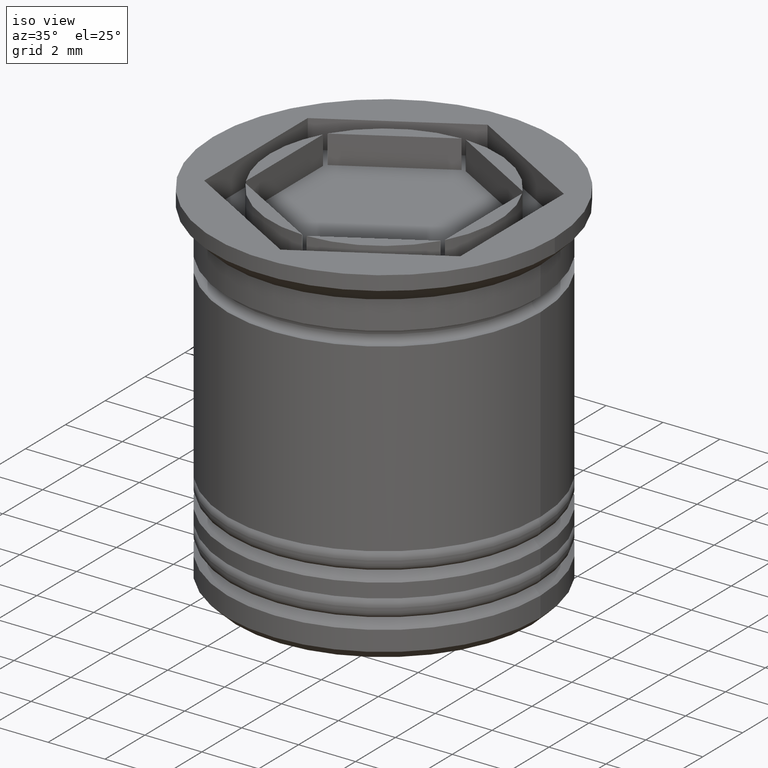
[diagram: clean part render]
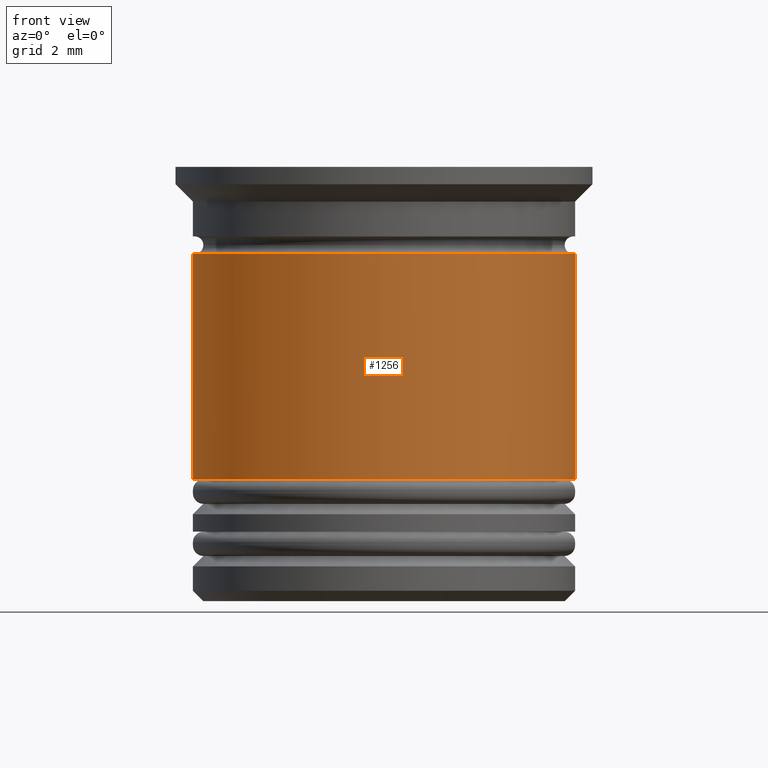
[diagram: tour spotlight — one face highlighted and labeled with its STEP entity id]
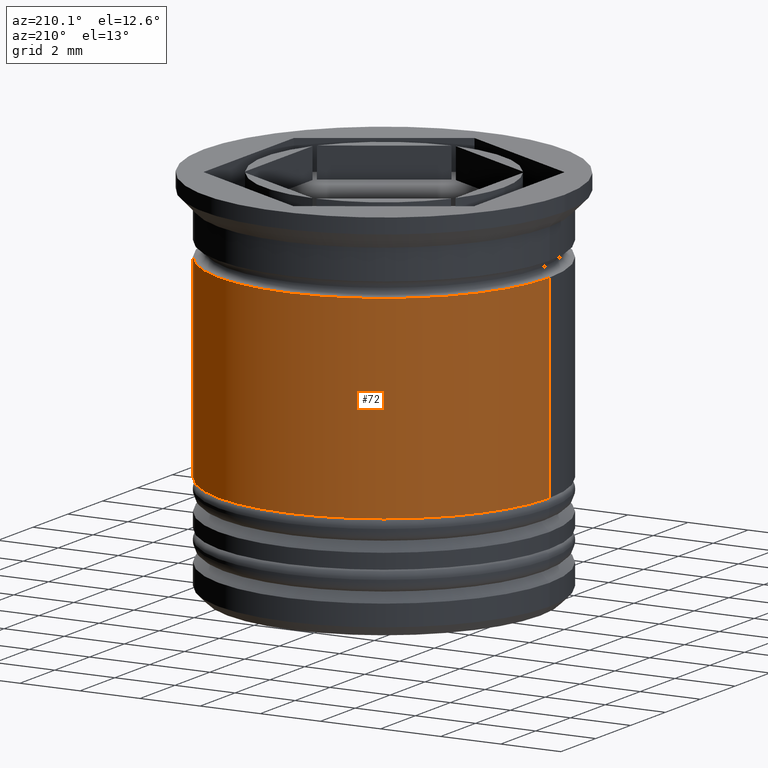
[diagram: tour spotlight — one face highlighted and labeled with its STEP entity id]
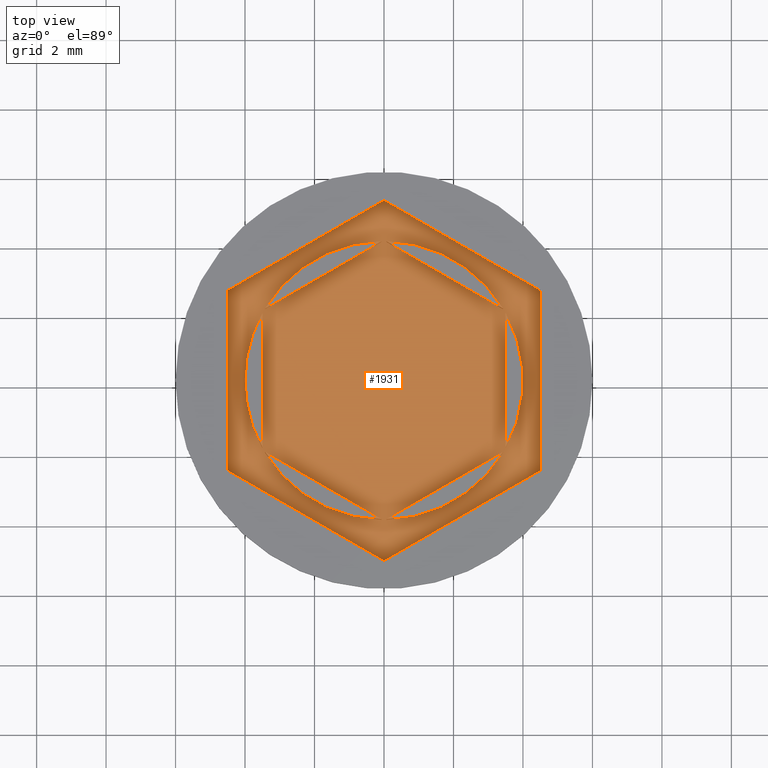
[diagram: tour spotlight — one face highlighted and labeled with its STEP entity id]
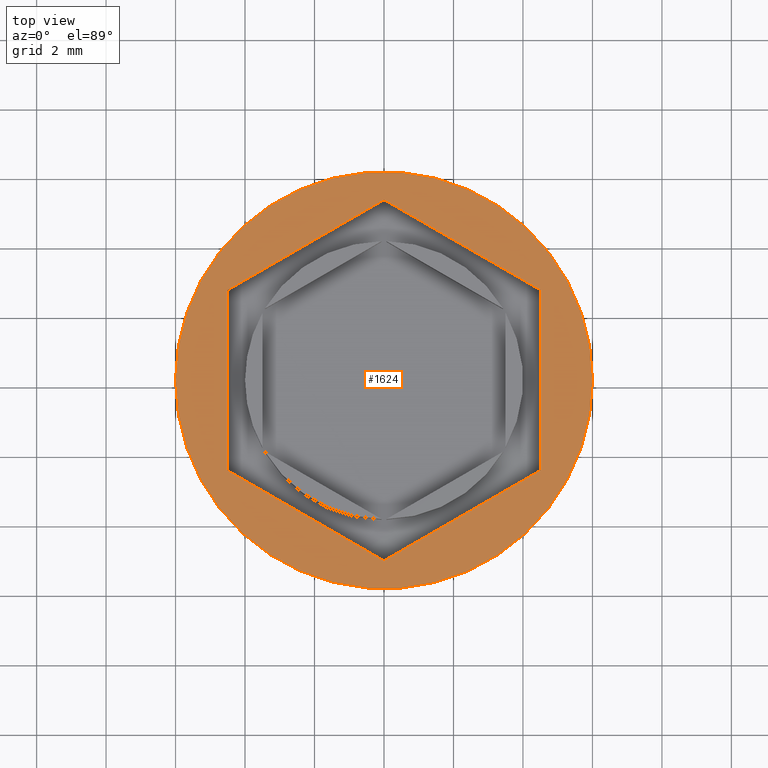
[diagram: tour spotlight — one face highlighted and labeled with its STEP entity id]
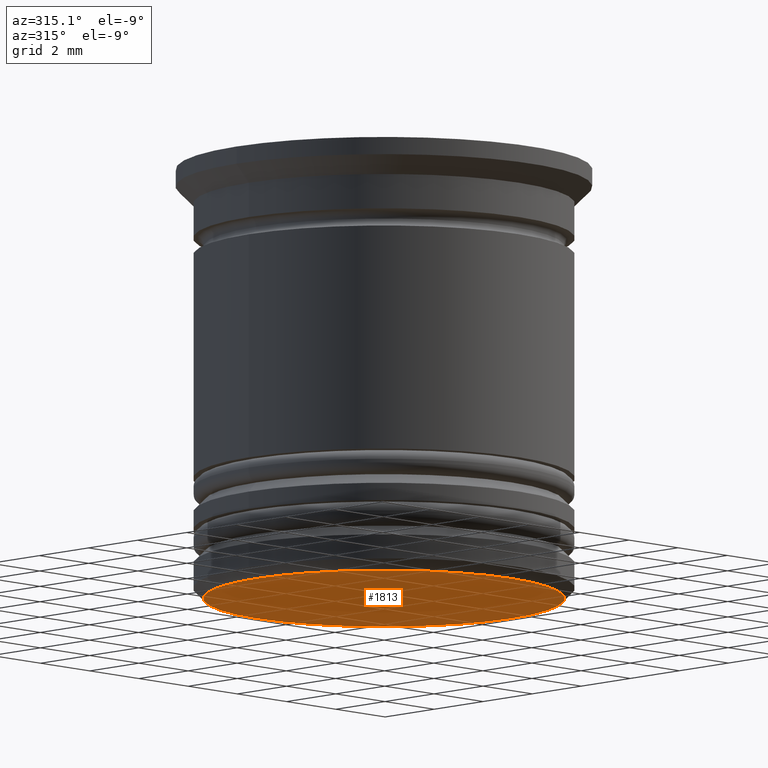
[diagram: tour spotlight — one face highlighted and labeled with its STEP entity id]
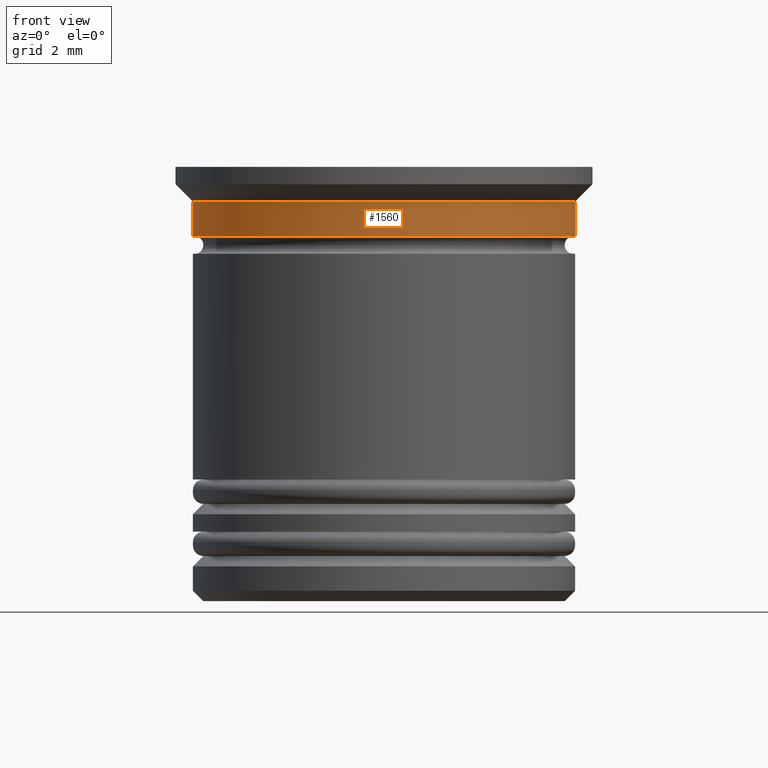
[diagram: tour spotlight — one face highlighted and labeled with its STEP entity id]
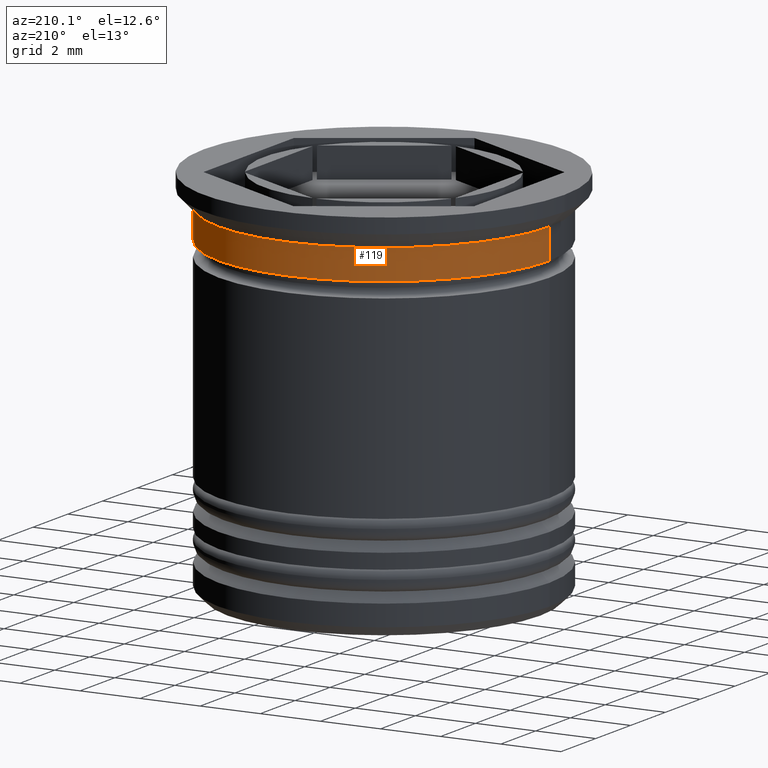
[diagram: tour spotlight — one face highlighted and labeled with its STEP entity id]
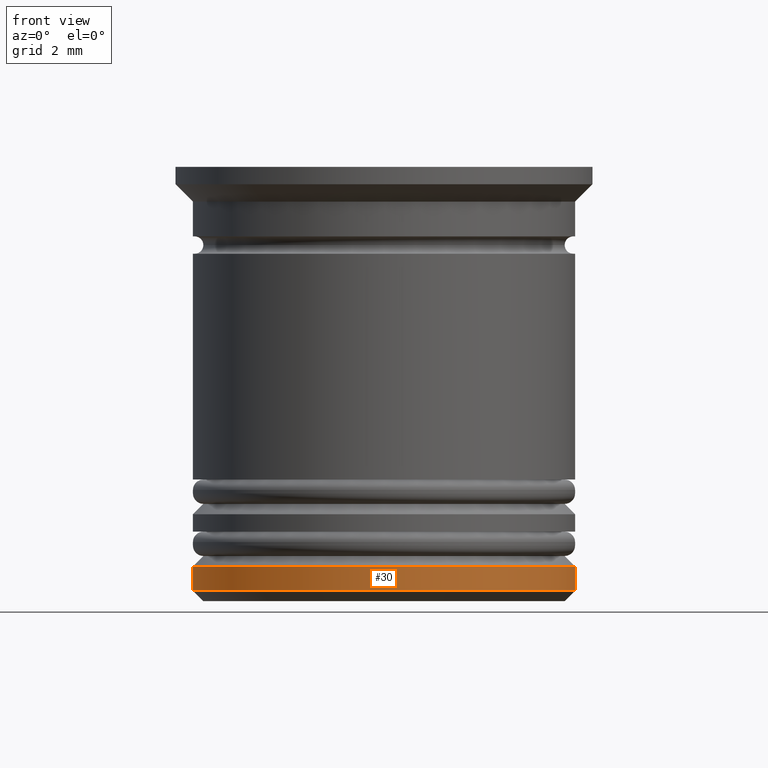
[diagram: tour spotlight — one face highlighted and labeled with its STEP entity id]
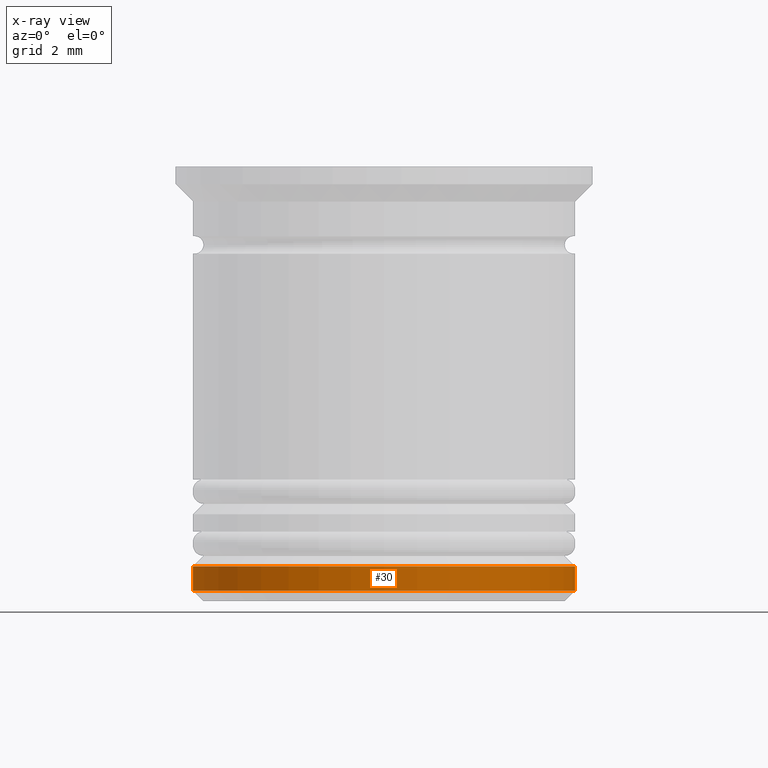
[diagram: x-ray of the same camera — body ghosted, this tour face saturated]
A machine part: a face-by-face anatomy tour. The part has 74 B-rep faces; the first image is the clean iso view, then the 8 largest visible faces are spotlighted one at a time (largest first), each with its STEP entity span.

Face 1 — front view, entity #1256. In plain terms, the highlighted cylindrical surface (partial cylindrical patch) has radius 5.5 mm, axis along (-0, -0, 1).
Definition (entity closure, byte-faithful):
#6 = ORIENTED_EDGE ( 'NONE', *, *, #1342, .T. ) ;
#20 = CARTESIAN_POINT ( 'NONE',  ( 5.499999999999999112, 0.000000000000000000, -2.500000000000000000 ) ) ;
#69 = CARTESIAN_POINT ( 'NONE',  ( -5.499999999999999112, 6.735557395310441037E-16, -2.500000000000000000 ) ) ;
#137 = LINE ( 'NONE', #1661, #1590 ) ;
#171 = CARTESIAN_POINT ( 'NONE',  ( 0.000000000000000000, 0.000000000000000000, 0.000000000000000000 ) ) ;
#198 = AXIS2_PLACEMENT_3D ( 'NONE', #1704, #1271, #1877 ) ;
#248 = DIRECTION ( 'NONE',  ( -0.000000000000000000, -0.000000000000000000, 1.000000000000000000 ) ) ;
#251 = VERTEX_POINT ( 'NONE', #20 ) ;
#255 = DIRECTION ( 'NONE',  ( 1.000000000000000000, 0.000000000000000000, 0.000000000000000000 ) ) ;
#344 = ORIENTED_EDGE ( 'NONE', *, *, #536, .F. ) ;
#404 = CARTESIAN_POINT ( 'NONE',  ( 0.000000000000000000, 0.000000000000000000, -2.500000000000000000 ) ) ;
#492 = AXIS2_PLACEMENT_3D ( 'NONE', #404, #248, #255 ) ;
#500 = LINE ( 'NONE', #1296, #595 ) ;
#536 = EDGE_CURVE ( 'NONE', #1142, #1334, #137, .T. ) ;
#595 = VECTOR ( 'NONE', #1904, 1000.000000000000000 ) ;
#699 = VERTEX_POINT ( 'NONE', #1688 ) ;
#730 = CIRCLE ( 'NONE', #492, 5.499999999999999112 ) ;
#793 = DIRECTION ( 'NONE',  ( -0.000000000000000000, -0.000000000000000000, 1.000000000000000000 ) ) ;
#848 = AXIS2_PLACEMENT_3D ( 'NONE', #171, #793, #1404 ) ;
#903 = CARTESIAN_POINT ( 'NONE',  ( -5.500000000000000888, 6.735557395310443995E-16, -9.000000000000001776 ) ) ;
#1082 = FACE_OUTER_BOUND ( 'NONE', #1716, .T. ) ;
#1104 = CIRCLE ( 'NONE', #198, 5.500000000000001776 ) ;
#1132 = ORIENTED_EDGE ( 'NONE', *, *, #1802, .T. ) ;
#1142 = VERTEX_POINT ( 'NONE', #903 ) ;
#1256 = ADVANCED_FACE ( 'NONE', ( #1082 ), #1707, .T. ) ;
#1271 = DIRECTION ( 'NONE',  ( -0.000000000000000000, -0.000000000000000000, 1.000000000000000000 ) ) ;
#1296 = CARTESIAN_POINT ( 'NONE',  ( 5.500000000000000000, 0.000000000000000000, 0.000000000000000000 ) ) ;
#1334 = VERTEX_POINT ( 'NONE', #69 ) ;
#1342 = EDGE_CURVE ( 'NONE', #699, #251, #500, .T. ) ;
#1404 = DIRECTION ( 'NONE',  ( 1.000000000000000000, 0.000000000000000000, 0.000000000000000000 ) ) ;
#1478 = EDGE_CURVE ( 'NONE', #1334, #251, #730, .T. ) ;
#1590 = VECTOR ( 'NONE', #1829, 1000.000000000000000 ) ;
#1661 = CARTESIAN_POINT ( 'NONE',  ( -5.500000000000000000, 6.735557395310442023E-16, 0.000000000000000000 ) ) ;
#1688 = CARTESIAN_POINT ( 'NONE',  ( 5.500000000000001776, 0.000000000000000000, -9.000000000000001776 ) ) ;
#1704 = CARTESIAN_POINT ( 'NONE',  ( 0.000000000000000000, 0.000000000000000000, -9.000000000000001776 ) ) ;
#1707 = CYLINDRICAL_SURFACE ( 'NONE', #848, 5.500000000000000000 ) ;
#1716 = EDGE_LOOP ( 'NONE', ( #344, #1132, #6, #1939 ) ) ;
#1802 = EDGE_CURVE ( 'NONE', #1142, #699, #1104, .T. ) ;
#1829 = DIRECTION ( 'NONE',  ( -0.000000000000000000, -0.000000000000000000, 1.000000000000000000 ) ) ;
#1877 = DIRECTION ( 'NONE',  ( 1.000000000000000000, 0.000000000000000000, 0.000000000000000000 ) ) ;
#1904 = DIRECTION ( 'NONE',  ( -0.000000000000000000, -0.000000000000000000, 1.000000000000000000 ) ) ;
#1939 = ORIENTED_EDGE ( 'NONE', *, *, #1478, .F. ) ;

Face 2 — auxiliary view, entity #72. In plain terms, the highlighted cylindrical surface (partial cylindrical patch) has radius 5.5 mm, axis along (-0, -0, 1).
Definition (entity closure, byte-faithful):
#20 = CARTESIAN_POINT ( 'NONE',  ( 5.499999999999999112, 0.000000000000000000, -2.500000000000000000 ) ) ;
#39 = DIRECTION ( 'NONE',  ( -0.000000000000000000, -0.000000000000000000, 1.000000000000000000 ) ) ;
#54 = CARTESIAN_POINT ( 'NONE',  ( 0.000000000000000000, 0.000000000000000000, -9.000000000000001776 ) ) ;
#69 = CARTESIAN_POINT ( 'NONE',  ( -5.499999999999999112, 6.735557395310441037E-16, -2.500000000000000000 ) ) ;
#72 = ADVANCED_FACE ( 'NONE', ( #507 ), #1295, .T. ) ;
#137 = LINE ( 'NONE', #1661, #1590 ) ;
#251 = VERTEX_POINT ( 'NONE', #20 ) ;
#444 = ORIENTED_EDGE ( 'NONE', *, *, #1342, .F. ) ;
#477 = ORIENTED_EDGE ( 'NONE', *, *, #1377, .T. ) ;
#488 = DIRECTION ( 'NONE',  ( -0.000000000000000000, -0.000000000000000000, 1.000000000000000000 ) ) ;
#500 = LINE ( 'NONE', #1296, #595 ) ;
#507 = FACE_OUTER_BOUND ( 'NONE', #1226, .T. ) ;
#536 = EDGE_CURVE ( 'NONE', #1142, #1334, #137, .T. ) ;
#562 = CIRCLE ( 'NONE', #653, 5.500000000000001776 ) ;
#595 = VECTOR ( 'NONE', #1904, 1000.000000000000000 ) ;
#653 = AXIS2_PLACEMENT_3D ( 'NONE', #54, #39, #1277 ) ;
#699 = VERTEX_POINT ( 'NONE', #1688 ) ;
#903 = CARTESIAN_POINT ( 'NONE',  ( -5.500000000000000888, 6.735557395310443995E-16, -9.000000000000001776 ) ) ;
#1004 = AXIS2_PLACEMENT_3D ( 'NONE', #1925, #1520, #1170 ) ;
#1142 = VERTEX_POINT ( 'NONE', #903 ) ;
#1170 = DIRECTION ( 'NONE',  ( 1.000000000000000000, 0.000000000000000000, 0.000000000000000000 ) ) ;
#1226 = EDGE_LOOP ( 'NONE', ( #477, #1278, #1730, #444 ) ) ;
#1252 = CARTESIAN_POINT ( 'NONE',  ( 0.000000000000000000, 0.000000000000000000, 0.000000000000000000 ) ) ;
#1277 = DIRECTION ( 'NONE',  ( 1.000000000000000000, 0.000000000000000000, 0.000000000000000000 ) ) ;
#1278 = ORIENTED_EDGE ( 'NONE', *, *, #536, .T. ) ;
#1295 = CYLINDRICAL_SURFACE ( 'NONE', #1536, 5.500000000000000000 ) ;
#1296 = CARTESIAN_POINT ( 'NONE',  ( 5.500000000000000000, 0.000000000000000000, 0.000000000000000000 ) ) ;
#1334 = VERTEX_POINT ( 'NONE', #69 ) ;
#1342 = EDGE_CURVE ( 'NONE', #699, #251, #500, .T. ) ;
#1377 = EDGE_CURVE ( 'NONE', #699, #1142, #562, .T. ) ;
#1473 = EDGE_CURVE ( 'NONE', #251, #1334, #1539, .T. ) ;
#1520 = DIRECTION ( 'NONE',  ( -0.000000000000000000, -0.000000000000000000, 1.000000000000000000 ) ) ;
#1536 = AXIS2_PLACEMENT_3D ( 'NONE', #1252, #488, #1720 ) ;
#1539 = CIRCLE ( 'NONE', #1004, 5.499999999999999112 ) ;
#1590 = VECTOR ( 'NONE', #1829, 1000.000000000000000 ) ;
#1661 = CARTESIAN_POINT ( 'NONE',  ( -5.500000000000000000, 6.735557395310442023E-16, 0.000000000000000000 ) ) ;
#1688 = CARTESIAN_POINT ( 'NONE',  ( 5.500000000000001776, 0.000000000000000000, -9.000000000000001776 ) ) ;
#1720 = DIRECTION ( 'NONE',  ( 1.000000000000000000, 0.000000000000000000, 0.000000000000000000 ) ) ;
#1730 = ORIENTED_EDGE ( 'NONE', *, *, #1473, .F. ) ;
#1829 = DIRECTION ( 'NONE',  ( -0.000000000000000000, -0.000000000000000000, 1.000000000000000000 ) ) ;
#1904 = DIRECTION ( 'NONE',  ( -0.000000000000000000, -0.000000000000000000, 1.000000000000000000 ) ) ;
#1925 = CARTESIAN_POINT ( 'NONE',  ( 0.000000000000000000, 0.000000000000000000, -2.500000000000000000 ) ) ;

Face 3 — top view, entity #1931. In plain terms, the highlighted planar face has unit normal (0, 0, 1).
Definition (entity closure, byte-faithful):
#50 = CARTESIAN_POINT ( 'NONE',  ( 0.000000000000000000, 4.041451884327379673, -1.000000000000000888 ) ) ;
#73 = CARTESIAN_POINT ( 'NONE',  ( -3.427050983124842354, -2.062843076693682498, -1.000000000000000888 ) ) ;
#81 = LINE ( 'NONE', #1025, #1625 ) ;
#87 = VERTEX_POINT ( 'NONE', #1285 ) ;
#114 = DIRECTION ( 'NONE',  ( -0.8660254037844387076, 0.4999999999999998335, 0.000000000000000000 ) ) ;
#140 = DIRECTION ( 'NONE',  ( 1.000000000000000000, 0.000000000000000000, 0.000000000000000000 ) ) ;
#150 = PLANE ( 'NONE',  #1139 ) ;
#158 = CIRCLE ( 'NONE', #357, 4.000000000000000000 ) ;
#184 = VERTEX_POINT ( 'NONE', #989 ) ;
#192 = ORIENTED_EDGE ( 'NONE', *, *, #813, .F. ) ;
#201 = ORIENTED_EDGE ( 'NONE', *, *, #1126, .T. ) ;
#206 = CARTESIAN_POINT ( 'NONE',  ( 3.499999999999998668, -2.020725942163690725, -1.000000000000000888 ) ) ;
#209 = VERTEX_POINT ( 'NONE', #247 ) ;
#214 = EDGE_LOOP ( 'NONE', ( #1815, #1189 ) ) ;
#247 = CARTESIAN_POINT ( 'NONE',  ( 3.499999999999999112, -1.936491673103710065, -1.000000000000000888 ) ) ;
#253 = DIRECTION ( 'NONE',  ( 1.000000000000000000, 0.000000000000000000, 0.000000000000000000 ) ) ;
#262 = CIRCLE ( 'NONE', #784, 4.000000000000000000 ) ;
#264 = VECTOR ( 'NONE', #1986, 1000.000000000000000 ) ;
#269 = VERTEX_POINT ( 'NONE', #1107 ) ;
#289 = EDGE_LOOP ( 'NONE', ( #1522, #806, #1228, #201, #1705, #833 ) ) ;
#301 = DIRECTION ( 'NONE',  ( 1.000000000000000000, 0.000000000000000000, 0.000000000000000000 ) ) ;
#319 = CARTESIAN_POINT ( 'NONE',  ( 3.500000000000000000, 1.936491673103707845, -1.000000000000000888 ) ) ;
#341 = ORIENTED_EDGE ( 'NONE', *, *, #465, .F. ) ;
#357 = AXIS2_PLACEMENT_3D ( 'NONE', #1962, #447, #253 ) ;
#384 = CARTESIAN_POINT ( 'NONE',  ( -4.500000000000000888, 2.598076211353315568, -1.000000000000000000 ) ) ;
#385 = VERTEX_POINT ( 'NONE', #524 ) ;
#391 = CARTESIAN_POINT ( 'NONE',  ( 0.000000000000000000, 5.196152422706632912, -1.000000000000000000 ) ) ;
#398 = CIRCLE ( 'NONE', #1690, 4.000000000000000000 ) ;
#400 = EDGE_CURVE ( 'NONE', #1804, #209, #1733, .T. ) ;
#422 = EDGE_LOOP ( 'NONE', ( #1678, #1153, #1671 ) ) ;
#443 = VERTEX_POINT ( 'NONE', #73 ) ;
#447 = DIRECTION ( 'NONE',  ( 0.000000000000000000, 0.000000000000000000, 1.000000000000000000 ) ) ;
#453 = CARTESIAN_POINT ( 'NONE',  ( 0.000000000000000000, 0.000000000000000000, -1.000000000000000000 ) ) ;
#465 = EDGE_CURVE ( 'NONE', #1328, #87, #1470, .T. ) ;
#472 = DIRECTION ( 'NONE',  ( 0.000000000000000000, 0.000000000000000000, 1.000000000000000000 ) ) ;
#478 = EDGE_CURVE ( 'NONE', #1396, #1193, #1655, .T. ) ;
#485 = CARTESIAN_POINT ( 'NONE',  ( -3.499999999999999556, 1.936491673103708955, -1.000000000000000888 ) ) ;
#490 = FACE_BOUND ( 'NONE', #1183, .T. ) ;
#491 = AXIS2_PLACEMENT_3D ( 'NONE', #1336, #1928, #1805 ) ;
#493 = CARTESIAN_POINT ( 'NONE',  ( -3.499999999999999556, 2.020725942163689837, -1.000000000000000888 ) ) ;
#494 = VECTOR ( 'NONE', #114, 1000.000000000000114 ) ;
#505 = EDGE_CURVE ( 'NONE', #1308, #269, #1929, .T. ) ;
#516 = DIRECTION ( 'NONE',  ( -0.8660254037844384856, -0.5000000000000001110, 0.000000000000000000 ) ) ;
#524 = CARTESIAN_POINT ( 'NONE',  ( -0.07294901687515892297, -3.999334749797390121, -1.000000000000000888 ) ) ;
#559 = DIRECTION ( 'NONE',  ( 0.000000000000000000, 1.000000000000000000, 0.000000000000000000 ) ) ;
#577 = VERTEX_POINT ( 'NONE', #1821 ) ;
#584 = CARTESIAN_POINT ( 'NONE',  ( 3.427050983124842354, 2.062843076693681166, -1.000000000000000888 ) ) ;
#604 = EDGE_CURVE ( 'NONE', #1437, #1879, #158, .T. ) ;
#613 = EDGE_CURVE ( 'NONE', #209, #1804, #262, .T. ) ;
#618 = CARTESIAN_POINT ( 'NONE',  ( 0.000000000000000000, 0.000000000000000000, -1.000000000000000000 ) ) ;
#652 = VECTOR ( 'NONE', #1572, 1000.000000000000227 ) ;
#673 = CARTESIAN_POINT ( 'NONE',  ( 0.07294901687515892297, -3.999334749797390121, -1.000000000000000888 ) ) ;
#701 = CARTESIAN_POINT ( 'NONE',  ( -3.427050983124842798, 2.062843076693678501, -1.000000000000000888 ) ) ;
#729 = EDGE_CURVE ( 'NONE', #577, #1626, #1376, .T. ) ;
#780 = CARTESIAN_POINT ( 'NONE',  ( -4.500000000000000888, -2.598076211353316456, -1.000000000000000000 ) ) ;
#784 = AXIS2_PLACEMENT_3D ( 'NONE', #871, #1491, #1048 ) ;
#806 = ORIENTED_EDGE ( 'NONE', *, *, #1298, .T. ) ;
#813 = EDGE_CURVE ( 'NONE', #385, #443, #824, .T. ) ;
#817 = EDGE_LOOP ( 'NONE', ( #1030, #1700 ) ) ;
#824 = LINE ( 'NONE', #1875, #1814 ) ;
#825 = DIRECTION ( 'NONE',  ( 0.000000000000000000, 0.000000000000000000, 1.000000000000000000 ) ) ;
#826 = LINE ( 'NONE', #1895, #1718 ) ;
#833 = ORIENTED_EDGE ( 'NONE', *, *, #505, .T. ) ;
#862 = LINE ( 'NONE', #994, #494 ) ;
#871 = CARTESIAN_POINT ( 'NONE',  ( 0.000000000000000000, 0.000000000000000000, -1.000000000000000000 ) ) ;
#886 = VERTEX_POINT ( 'NONE', #391 ) ;
#898 = VERTEX_POINT ( 'NONE', #1732 ) ;
#909 = VECTOR ( 'NONE', #516, 1000.000000000000227 ) ;
#914 = AXIS2_PLACEMENT_3D ( 'NONE', #1818, #1621, #1910 ) ;
#921 = CARTESIAN_POINT ( 'NONE',  ( 3.427050983124842354, -2.062843076693682498, -1.000000000000000888 ) ) ;
#922 = FACE_BOUND ( 'NONE', #214, .T. ) ;
#927 = VERTEX_POINT ( 'NONE', #1427 ) ;
#954 = ORIENTED_EDGE ( 'NONE', *, *, #1845, .F. ) ;
#976 = DIRECTION ( 'NONE',  ( -3.219245568722483850E-16, -1.000000000000000000, 0.000000000000000000 ) ) ;
#980 = LINE ( 'NONE', #1111, #909 ) ;
#989 = CARTESIAN_POINT ( 'NONE',  ( -4.500000000000000888, -2.598076211353316456, -1.000000000000000000 ) ) ;
#994 = CARTESIAN_POINT ( 'NONE',  ( 4.500000000000000888, 2.598076211353317344, -1.000000000000000000 ) ) ;
#1005 = DIRECTION ( 'NONE',  ( 1.000000000000000000, 0.000000000000000000, 0.000000000000000000 ) ) ;
#1013 = EDGE_CURVE ( 'NONE', #1193, #1396, #81, .T. ) ;
#1023 = VERTEX_POINT ( 'NONE', #1174 ) ;
#1025 = CARTESIAN_POINT ( 'NONE',  ( -2.168404344971008868E-16, -4.041451884327380562, -1.000000000000000888 ) ) ;
#1030 = ORIENTED_EDGE ( 'NONE', *, *, #604, .F. ) ;
#1048 = DIRECTION ( 'NONE',  ( 1.000000000000000000, 0.000000000000000000, 0.000000000000000000 ) ) ;
#1049 = EDGE_CURVE ( 'NONE', #87, #1328, #1934, .T. ) ;
#1057 = ORIENTED_EDGE ( 'NONE', *, *, #1049, .F. ) ;
#1068 = VECTOR ( 'NONE', #1380, 1000.000000000000000 ) ;
#1077 = DIRECTION ( 'NONE',  ( 1.000000000000000000, 0.000000000000000000, -0.000000000000000000 ) ) ;
#1083 = DIRECTION ( 'NONE',  ( 0.000000000000000000, 0.000000000000000000, 1.000000000000000000 ) ) ;
#1086 = DIRECTION ( 'NONE',  ( 0.8660254037844387076, -0.4999999999999998335, 0.000000000000000000 ) ) ;
#1090 = CARTESIAN_POINT ( 'NONE',  ( -3.394223061414856671E-17, -5.196152422706632912, -1.000000000000000000 ) ) ;
#1092 = FACE_BOUND ( 'NONE', #1109, .T. ) ;
#1107 = CARTESIAN_POINT ( 'NONE',  ( 4.500000000000000888, 2.598076211353317344, -1.000000000000000000 ) ) ;
#1109 = EDGE_LOOP ( 'NONE', ( #1057, #341 ) ) ;
#1111 = CARTESIAN_POINT ( 'NONE',  ( 0.000000000000000000, 5.196152422706632912, -1.000000000000000000 ) ) ;
#1126 = EDGE_CURVE ( 'NONE', #184, #1023, #1861, .T. ) ;
#1135 = AXIS2_PLACEMENT_3D ( 'NONE', #618, #1695, #301 ) ;
#1139 = AXIS2_PLACEMENT_3D ( 'NONE', #453, #1083, #1077 ) ;
#1140 = CARTESIAN_POINT ( 'NONE',  ( 0.000000000000000000, 0.000000000000000000, -1.000000000000000000 ) ) ;
#1153 = ORIENTED_EDGE ( 'NONE', *, *, #729, .F. ) ;
#1165 = EDGE_CURVE ( 'NONE', #1023, #1308, #1551, .T. ) ;
#1166 = DIRECTION ( 'NONE',  ( 0.000000000000000000, -1.000000000000000000, 0.000000000000000000 ) ) ;
#1174 = CARTESIAN_POINT ( 'NONE',  ( -3.394223061414856671E-17, -5.196152422706632912, -1.000000000000000000 ) ) ;
#1178 = LINE ( 'NONE', #384, #1941 ) ;
#1179 = EDGE_CURVE ( 'NONE', #927, #577, #1337, .T. ) ;
#1183 = EDGE_LOOP ( 'NONE', ( #1212, #1632 ) ) ;
#1189 = ORIENTED_EDGE ( 'NONE', *, *, #400, .F. ) ;
#1193 = VERTEX_POINT ( 'NONE', #921 ) ;
#1212 = ORIENTED_EDGE ( 'NONE', *, *, #478, .F. ) ;
#1223 = FACE_BOUND ( 'NONE', #817, .T. ) ;
#1228 = ORIENTED_EDGE ( 'NONE', *, *, #1724, .T. ) ;
#1280 = DIRECTION ( 'NONE',  ( 0.8660254037844385966, 0.4999999999999998890, -0.000000000000000000 ) ) ;
#1285 = CARTESIAN_POINT ( 'NONE',  ( -0.07294901687515480126, 3.999334749797389232, -1.000000000000000888 ) ) ;
#1298 = EDGE_CURVE ( 'NONE', #886, #898, #980, .T. ) ;
#1308 = VERTEX_POINT ( 'NONE', #1462 ) ;
#1328 = VERTEX_POINT ( 'NONE', #701 ) ;
#1336 = CARTESIAN_POINT ( 'NONE',  ( 0.000000000000000000, 0.000000000000000000, -1.000000000000000000 ) ) ;
#1337 = CIRCLE ( 'NONE', #1135, 4.000000000000000000 ) ;
#1339 = CARTESIAN_POINT ( 'NONE',  ( 4.500000000000000888, -2.598076211353316012, -1.000000000000000000 ) ) ;
#1340 = CIRCLE ( 'NONE', #914, 4.000000000000000000 ) ;
#1347 = DIRECTION ( 'NONE',  ( -0.8660254037844387076, -0.5000000000000001110, 0.000000000000000000 ) ) ;
#1376 = LINE ( 'NONE', #493, #264 ) ;
#1380 = DIRECTION ( 'NONE',  ( 0.8660254037844385966, 0.5000000000000001110, 0.000000000000000000 ) ) ;
#1384 = CARTESIAN_POINT ( 'NONE',  ( 0.000000000000000000, 0.000000000000000000, -1.000000000000000000 ) ) ;
#1396 = VERTEX_POINT ( 'NONE', #673 ) ;
#1427 = CARTESIAN_POINT ( 'NONE',  ( -4.000000000000000000, 0.000000000000000000, -1.000000000000000000 ) ) ;
#1437 = VERTEX_POINT ( 'NONE', #584 ) ;
#1438 = DIRECTION ( 'NONE',  ( -0.8660254037844387076, 0.5000000000000001110, 0.000000000000000000 ) ) ;
#1455 = AXIS2_PLACEMENT_3D ( 'NONE', #1140, #825, #1005 ) ;
#1462 = CARTESIAN_POINT ( 'NONE',  ( 4.500000000000000888, -2.598076211353316012, -1.000000000000000000 ) ) ;
#1470 = LINE ( 'NONE', #50, #1930 ) ;
#1491 = DIRECTION ( 'NONE',  ( 0.000000000000000000, 0.000000000000000000, 1.000000000000000000 ) ) ;
#1522 = ORIENTED_EDGE ( 'NONE', *, *, #1850, .T. ) ;
#1527 = EDGE_CURVE ( 'NONE', #1626, #927, #398, .T. ) ;
#1534 = CARTESIAN_POINT ( 'NONE',  ( 0.07294901687515632782, 3.999334749797389232, -1.000000000000000888 ) ) ;
#1551 = LINE ( 'NONE', #1090, #1068 ) ;
#1552 = FACE_OUTER_BOUND ( 'NONE', #289, .T. ) ;
#1562 = VECTOR ( 'NONE', #559, 1000.000000000000000 ) ;
#1572 = DIRECTION ( 'NONE',  ( 0.8660254037844385966, -0.5000000000000000000, 0.000000000000000000 ) ) ;
#1621 = DIRECTION ( 'NONE',  ( 0.000000000000000000, 0.000000000000000000, 1.000000000000000000 ) ) ;
#1625 = VECTOR ( 'NONE', #1347, 999.9999999999998863 ) ;
#1626 = VERTEX_POINT ( 'NONE', #485 ) ;
#1632 = ORIENTED_EDGE ( 'NONE', *, *, #1013, .F. ) ;
#1655 = CIRCLE ( 'NONE', #1455, 4.000000000000000000 ) ;
#1671 = ORIENTED_EDGE ( 'NONE', *, *, #1179, .F. ) ;
#1678 = ORIENTED_EDGE ( 'NONE', *, *, #1527, .F. ) ;
#1690 = AXIS2_PLACEMENT_3D ( 'NONE', #1384, #472, #140 ) ;
#1695 = DIRECTION ( 'NONE',  ( 0.000000000000000000, 0.000000000000000000, 1.000000000000000000 ) ) ;
#1696 = FACE_BOUND ( 'NONE', #1759, .T. ) ;
#1700 = ORIENTED_EDGE ( 'NONE', *, *, #1793, .F. ) ;
#1705 = ORIENTED_EDGE ( 'NONE', *, *, #1165, .T. ) ;
#1718 = VECTOR ( 'NONE', #1086, 1000.000000000000114 ) ;
#1724 = EDGE_CURVE ( 'NONE', #898, #184, #1178, .T. ) ;
#1732 = CARTESIAN_POINT ( 'NONE',  ( -4.500000000000000888, 2.598076211353315568, -1.000000000000000000 ) ) ;
#1733 = LINE ( 'NONE', #206, #1774 ) ;
#1759 = EDGE_LOOP ( 'NONE', ( #954, #192 ) ) ;
#1774 = VECTOR ( 'NONE', #976, 1000.000000000000000 ) ;
#1793 = EDGE_CURVE ( 'NONE', #1879, #1437, #826, .T. ) ;
#1804 = VERTEX_POINT ( 'NONE', #319 ) ;
#1805 = DIRECTION ( 'NONE',  ( 1.000000000000000000, 0.000000000000000000, 0.000000000000000000 ) ) ;
#1814 = VECTOR ( 'NONE', #1438, 999.9999999999998863 ) ;
#1815 = ORIENTED_EDGE ( 'NONE', *, *, #613, .F. ) ;
#1818 = CARTESIAN_POINT ( 'NONE',  ( 0.000000000000000000, 0.000000000000000000, -1.000000000000000000 ) ) ;
#1821 = CARTESIAN_POINT ( 'NONE',  ( -3.499999999999999556, -1.936491673103708955, -1.000000000000000888 ) ) ;
#1833 = FACE_BOUND ( 'NONE', #422, .T. ) ;
#1845 = EDGE_CURVE ( 'NONE', #443, #385, #1340, .T. ) ;
#1850 = EDGE_CURVE ( 'NONE', #269, #886, #862, .T. ) ;
#1861 = LINE ( 'NONE', #780, #652 ) ;
#1875 = CARTESIAN_POINT ( 'NONE',  ( -3.499999999999999556, -2.020725942163690281, -1.000000000000000888 ) ) ;
#1879 = VERTEX_POINT ( 'NONE', #1534 ) ;
#1895 = CARTESIAN_POINT ( 'NONE',  ( 3.500000000000000000, 2.020725942163690281, -1.000000000000000888 ) ) ;
#1910 = DIRECTION ( 'NONE',  ( 1.000000000000000000, 0.000000000000000000, 0.000000000000000000 ) ) ;
#1928 = DIRECTION ( 'NONE',  ( 0.000000000000000000, 0.000000000000000000, 1.000000000000000000 ) ) ;
#1929 = LINE ( 'NONE', #1339, #1562 ) ;
#1930 = VECTOR ( 'NONE', #1280, 1000.000000000000227 ) ;
#1931 = ADVANCED_FACE ( 'NONE', ( #1223, #922, #490, #1696, #1833, #1092, #1552 ), #150, .T. ) ;
#1934 = CIRCLE ( 'NONE', #491, 4.000000000000000000 ) ;
#1941 = VECTOR ( 'NONE', #1166, 1000.000000000000000 ) ;
#1962 = CARTESIAN_POINT ( 'NONE',  ( 0.000000000000000000, 0.000000000000000000, -1.000000000000000000 ) ) ;
#1986 = DIRECTION ( 'NONE',  ( 0.000000000000000000, 1.000000000000000000, 0.000000000000000000 ) ) ;

Face 4 — top view, entity #1624. In plain terms, the highlighted planar face has unit normal (0, -0, 1).
Definition (entity closure, byte-faithful):
#4 = AXIS2_PLACEMENT_3D ( 'NONE', #1291, #513, #1128 ) ;
#28 = CARTESIAN_POINT ( 'NONE',  ( -4.500000000000000888, 2.598076211353315568, 0.000000000000000000 ) ) ;
#37 = ORIENTED_EDGE ( 'NONE', *, *, #1587, .F. ) ;
#43 = VERTEX_POINT ( 'NONE', #1882 ) ;
#106 = DIRECTION ( 'NONE',  ( 0.000000000000000000, 1.000000000000000000, 0.000000000000000000 ) ) ;
#108 = ORIENTED_EDGE ( 'NONE', *, *, #932, .F. ) ;
#215 = LINE ( 'NONE', #380, #1563 ) ;
#294 = ORIENTED_EDGE ( 'NONE', *, *, #1430, .T. ) ;
#315 = VERTEX_POINT ( 'NONE', #338 ) ;
#321 = ORIENTED_EDGE ( 'NONE', *, *, #1703, .F. ) ;
#333 = VERTEX_POINT ( 'NONE', #1965 ) ;
#338 = CARTESIAN_POINT ( 'NONE',  ( -4.500000000000000888, -2.598076211353316456, 0.000000000000000000 ) ) ;
#363 = VECTOR ( 'NONE', #646, 1000.000000000000000 ) ;
#380 = CARTESIAN_POINT ( 'NONE',  ( 0.000000000000000000, 5.196152422706632912, 0.000000000000000000 ) ) ;
#409 = CARTESIAN_POINT ( 'NONE',  ( -3.394223061414856671E-17, -5.196152422706632912, 0.000000000000000000 ) ) ;
#421 = DIRECTION ( 'NONE',  ( -0.000000000000000000, -0.000000000000000000, 1.000000000000000000 ) ) ;
#424 = CARTESIAN_POINT ( 'NONE',  ( 4.500000000000000888, 2.598076211353317344, 0.000000000000000000 ) ) ;
#471 = VERTEX_POINT ( 'NONE', #993 ) ;
#481 = DIRECTION ( 'NONE',  ( 0.8660254037844385966, 0.5000000000000001110, 0.000000000000000000 ) ) ;
#510 = VERTEX_POINT ( 'NONE', #1037 ) ;
#513 = DIRECTION ( 'NONE',  ( 0.000000000000000000, -0.000000000000000000, 1.000000000000000000 ) ) ;
#572 = LINE ( 'NONE', #1775, #814 ) ;
#575 = DIRECTION ( 'NONE',  ( 1.000000000000000000, 0.000000000000000000, 0.000000000000000000 ) ) ;
#594 = VECTOR ( 'NONE', #481, 1000.000000000000000 ) ;
#646 = DIRECTION ( 'NONE',  ( 0.000000000000000000, -1.000000000000000000, 0.000000000000000000 ) ) ;
#754 = EDGE_LOOP ( 'NONE', ( #294, #1235 ) ) ;
#755 = DIRECTION ( 'NONE',  ( -0.8660254037844387076, 0.4999999999999998335, 0.000000000000000000 ) ) ;
#761 = AXIS2_PLACEMENT_3D ( 'NONE', #1937, #873, #1182 ) ;
#792 = ORIENTED_EDGE ( 'NONE', *, *, #1096, .F. ) ;
#814 = VECTOR ( 'NONE', #1350, 1000.000000000000227 ) ;
#846 = VERTEX_POINT ( 'NONE', #28 ) ;
#847 = DIRECTION ( 'NONE',  ( -0.8660254037844384856, -0.5000000000000001110, 0.000000000000000000 ) ) ;
#850 = CIRCLE ( 'NONE', #880, 6.000000000000000000 ) ;
#868 = EDGE_LOOP ( 'NONE', ( #946, #1950, #792, #321, #37, #108 ) ) ;
#869 = LINE ( 'NONE', #424, #1537 ) ;
#872 = VERTEX_POINT ( 'NONE', #1742 ) ;
#873 = DIRECTION ( 'NONE',  ( -0.000000000000000000, -0.000000000000000000, 1.000000000000000000 ) ) ;
#880 = AXIS2_PLACEMENT_3D ( 'NONE', #1031, #421, #575 ) ;
#932 = EDGE_CURVE ( 'NONE', #510, #846, #215, .T. ) ;
#946 = ORIENTED_EDGE ( 'NONE', *, *, #1076, .F. ) ;
#987 = FACE_BOUND ( 'NONE', #868, .T. ) ;
#993 = CARTESIAN_POINT ( 'NONE',  ( 4.500000000000000888, -2.598076211353316012, 0.000000000000000000 ) ) ;
#1031 = CARTESIAN_POINT ( 'NONE',  ( 0.000000000000000000, 0.000000000000000000, 0.000000000000000000 ) ) ;
#1037 = CARTESIAN_POINT ( 'NONE',  ( 0.000000000000000000, 5.196152422706632912, 0.000000000000000000 ) ) ;
#1062 = LINE ( 'NONE', #1854, #594 ) ;
#1076 = EDGE_CURVE ( 'NONE', #333, #510, #869, .T. ) ;
#1096 = EDGE_CURVE ( 'NONE', #1735, #471, #1062, .T. ) ;
#1100 = CARTESIAN_POINT ( 'NONE',  ( -4.500000000000000888, 2.598076211353315568, 0.000000000000000000 ) ) ;
#1128 = DIRECTION ( 'NONE',  ( 1.000000000000000000, 0.000000000000000000, 0.000000000000000000 ) ) ;
#1143 = FACE_OUTER_BOUND ( 'NONE', #754, .T. ) ;
#1182 = DIRECTION ( 'NONE',  ( 1.000000000000000000, 0.000000000000000000, 0.000000000000000000 ) ) ;
#1235 = ORIENTED_EDGE ( 'NONE', *, *, #1507, .T. ) ;
#1262 = PLANE ( 'NONE',  #4 ) ;
#1291 = CARTESIAN_POINT ( 'NONE',  ( 0.000000000000000000, 0.000000000000000000, 0.000000000000000000 ) ) ;
#1350 = DIRECTION ( 'NONE',  ( 0.8660254037844385966, -0.5000000000000000000, 0.000000000000000000 ) ) ;
#1430 = EDGE_CURVE ( 'NONE', #43, #872, #850, .T. ) ;
#1443 = LINE ( 'NONE', #1100, #363 ) ;
#1472 = CARTESIAN_POINT ( 'NONE',  ( 4.500000000000000888, -2.598076211353316012, 0.000000000000000000 ) ) ;
#1507 = EDGE_CURVE ( 'NONE', #872, #43, #1820, .T. ) ;
#1508 = LINE ( 'NONE', #1472, #1754 ) ;
#1537 = VECTOR ( 'NONE', #755, 1000.000000000000114 ) ;
#1563 = VECTOR ( 'NONE', #847, 1000.000000000000227 ) ;
#1587 = EDGE_CURVE ( 'NONE', #846, #315, #1443, .T. ) ;
#1624 = ADVANCED_FACE ( 'NONE', ( #987, #1143 ), #1262, .T. ) ;
#1703 = EDGE_CURVE ( 'NONE', #315, #1735, #572, .T. ) ;
#1715 = EDGE_CURVE ( 'NONE', #471, #333, #1508, .T. ) ;
#1735 = VERTEX_POINT ( 'NONE', #409 ) ;
#1742 = CARTESIAN_POINT ( 'NONE',  ( -6.000000000000000000, 7.347880794884119736E-16, 0.000000000000000000 ) ) ;
#1754 = VECTOR ( 'NONE', #106, 1000.000000000000000 ) ;
#1775 = CARTESIAN_POINT ( 'NONE',  ( -4.500000000000000888, -2.598076211353316456, 0.000000000000000000 ) ) ;
#1820 = CIRCLE ( 'NONE', #761, 6.000000000000000000 ) ;
#1854 = CARTESIAN_POINT ( 'NONE',  ( -3.394223061414856671E-17, -5.196152422706632912, 0.000000000000000000 ) ) ;
#1882 = CARTESIAN_POINT ( 'NONE',  ( 6.000000000000000000, 0.000000000000000000, 0.000000000000000000 ) ) ;
#1937 = CARTESIAN_POINT ( 'NONE',  ( 0.000000000000000000, 0.000000000000000000, 0.000000000000000000 ) ) ;
#1950 = ORIENTED_EDGE ( 'NONE', *, *, #1715, .F. ) ;
#1965 = CARTESIAN_POINT ( 'NONE',  ( 4.500000000000000888, 2.598076211353317344, 0.000000000000000000 ) ) ;

Face 5 — auxiliary view, entity #1813. In plain terms, the highlighted planar face has unit normal (0, 0, -1).
Definition (entity closure, byte-faithful):
#142 = ORIENTED_EDGE ( 'NONE', *, *, #1521, .T. ) ;
#147 = DIRECTION ( 'NONE',  ( -1.000000000000000000, 0.000000000000000000, 0.000000000000000000 ) ) ;
#222 = CARTESIAN_POINT ( 'NONE',  ( 0.000000000000000000, 0.000000000000000000, -12.50000000000000000 ) ) ;
#244 = DIRECTION ( 'NONE',  ( -1.000000000000000000, 0.000000000000000000, -0.000000000000000000 ) ) ;
#373 = CARTESIAN_POINT ( 'NONE',  ( 0.000000000000000000, 5.500000000000000888, -12.50000000000000000 ) ) ;
#545 = VERTEX_POINT ( 'NONE', #1788 ) ;
#651 = DIRECTION ( 'NONE',  ( 0.000000000000000000, 0.000000000000000000, -1.000000000000000000 ) ) ;
#913 = CARTESIAN_POINT ( 'NONE',  ( 0.000000000000000000, 0.000000000000000000, -12.50000000000000000 ) ) ;
#1101 = AXIS2_PLACEMENT_3D ( 'NONE', #222, #651, #1731 ) ;
#1217 = DIRECTION ( 'NONE',  ( 0.000000000000000000, 0.000000000000000000, -1.000000000000000000 ) ) ;
#1251 = CARTESIAN_POINT ( 'NONE',  ( 5.199999999999996625, 0.000000000000000000, -12.50000000000000000 ) ) ;
#1263 = CIRCLE ( 'NONE', #1420, 5.199999999999996625 ) ;
#1338 = CIRCLE ( 'NONE', #1101, 5.199999999999996625 ) ;
#1352 = EDGE_CURVE ( 'NONE', #545, #1575, #1338, .T. ) ;
#1375 = PLANE ( 'NONE',  #1570 ) ;
#1420 = AXIS2_PLACEMENT_3D ( 'NONE', #913, #1543, #147 ) ;
#1515 = FACE_OUTER_BOUND ( 'NONE', #1847, .T. ) ;
#1521 = EDGE_CURVE ( 'NONE', #1575, #545, #1263, .T. ) ;
#1543 = DIRECTION ( 'NONE',  ( 0.000000000000000000, 0.000000000000000000, -1.000000000000000000 ) ) ;
#1570 = AXIS2_PLACEMENT_3D ( 'NONE', #373, #1217, #244 ) ;
#1575 = VERTEX_POINT ( 'NONE', #1251 ) ;
#1731 = DIRECTION ( 'NONE',  ( -1.000000000000000000, 0.000000000000000000, 0.000000000000000000 ) ) ;
#1747 = ORIENTED_EDGE ( 'NONE', *, *, #1352, .T. ) ;
#1788 = CARTESIAN_POINT ( 'NONE',  ( -5.199999999999996625, 6.551860375438336737E-16, -12.50000000000000000 ) ) ;
#1813 = ADVANCED_FACE ( 'NONE', ( #1515 ), #1375, .T. ) ;
#1847 = EDGE_LOOP ( 'NONE', ( #142, #1747 ) ) ;

Face 6 — front view, entity #1560. In plain terms, the highlighted cylindrical surface (partial cylindrical patch) has radius 5.5 mm, axis along (-0, -0, 1).
Definition (entity closure, byte-faithful):
#42 = EDGE_CURVE ( 'NONE', #1871, #1588, #1265, .T. ) ;
#51 = FACE_OUTER_BOUND ( 'NONE', #1306, .T. ) ;
#161 = CARTESIAN_POINT ( 'NONE',  ( 5.499999999999999112, 0.000000000000000000, -2.000000000000000444 ) ) ;
#165 = DIRECTION ( 'NONE',  ( 1.000000000000000000, 0.000000000000000000, 0.000000000000000000 ) ) ;
#176 = DIRECTION ( 'NONE',  ( -0.000000000000000000, -0.000000000000000000, 1.000000000000000000 ) ) ;
#185 = CARTESIAN_POINT ( 'NONE',  ( 0.000000000000000000, 0.000000000000000000, 0.000000000000000000 ) ) ;
#197 = AXIS2_PLACEMENT_3D ( 'NONE', #185, #1576, #681 ) ;
#224 = ORIENTED_EDGE ( 'NONE', *, *, #776, .T. ) ;
#243 = DIRECTION ( 'NONE',  ( -0.000000000000000000, -0.000000000000000000, 1.000000000000000000 ) ) ;
#325 = CARTESIAN_POINT ( 'NONE',  ( 5.499999999999998224, 0.000000000000000000, -0.9999999999999997780 ) ) ;
#349 = CARTESIAN_POINT ( 'NONE',  ( -5.499999999999998224, 6.735557395310440051E-16, -0.9999999999999997780 ) ) ;
#440 = EDGE_CURVE ( 'NONE', #1588, #1172, #1035, .T. ) ;
#589 = DIRECTION ( 'NONE',  ( -0.000000000000000000, -0.000000000000000000, 1.000000000000000000 ) ) ;
#681 = DIRECTION ( 'NONE',  ( 1.000000000000000000, 0.000000000000000000, 0.000000000000000000 ) ) ;
#776 = EDGE_CURVE ( 'NONE', #1871, #1949, #1205, .T. ) ;
#867 = ORIENTED_EDGE ( 'NONE', *, *, #42, .F. ) ;
#929 = DIRECTION ( 'NONE',  ( -0.000000000000000000, -0.000000000000000000, 1.000000000000000000 ) ) ;
#1034 = CARTESIAN_POINT ( 'NONE',  ( 5.499999999999998224, 0.000000000000000000, 0.000000000000000000 ) ) ;
#1035 = CIRCLE ( 'NONE', #1200, 5.499999999999998224 ) ;
#1084 = EDGE_CURVE ( 'NONE', #1949, #1172, #1942, .T. ) ;
#1130 = AXIS2_PLACEMENT_3D ( 'NONE', #1548, #929, #165 ) ;
#1172 = VERTEX_POINT ( 'NONE', #325 ) ;
#1200 = AXIS2_PLACEMENT_3D ( 'NONE', #1876, #243, #1773 ) ;
#1205 = CIRCLE ( 'NONE', #1130, 5.499999999999999112 ) ;
#1265 = LINE ( 'NONE', #1577, #1740 ) ;
#1306 = EDGE_LOOP ( 'NONE', ( #867, #224, #1641, #1489 ) ) ;
#1402 = CYLINDRICAL_SURFACE ( 'NONE', #197, 5.499999999999998224 ) ;
#1489 = ORIENTED_EDGE ( 'NONE', *, *, #440, .F. ) ;
#1548 = CARTESIAN_POINT ( 'NONE',  ( 0.000000000000000000, 0.000000000000000000, -2.000000000000000444 ) ) ;
#1560 = ADVANCED_FACE ( 'NONE', ( #51 ), #1402, .T. ) ;
#1576 = DIRECTION ( 'NONE',  ( -0.000000000000000000, -0.000000000000000000, 1.000000000000000000 ) ) ;
#1577 = CARTESIAN_POINT ( 'NONE',  ( -5.499999999999998224, 6.735557395310440051E-16, 0.000000000000000000 ) ) ;
#1588 = VERTEX_POINT ( 'NONE', #349 ) ;
#1641 = ORIENTED_EDGE ( 'NONE', *, *, #1084, .T. ) ;
#1740 = VECTOR ( 'NONE', #176, 1000.000000000000000 ) ;
#1765 = CARTESIAN_POINT ( 'NONE',  ( -5.499999999999999112, 6.735557395310442023E-16, -2.000000000000000444 ) ) ;
#1773 = DIRECTION ( 'NONE',  ( 1.000000000000000000, 0.000000000000000000, 0.000000000000000000 ) ) ;
#1871 = VERTEX_POINT ( 'NONE', #1765 ) ;
#1876 = CARTESIAN_POINT ( 'NONE',  ( 0.000000000000000000, 0.000000000000000000, -0.9999999999999997780 ) ) ;
#1898 = VECTOR ( 'NONE', #589, 1000.000000000000000 ) ;
#1942 = LINE ( 'NONE', #1034, #1898 ) ;
#1949 = VERTEX_POINT ( 'NONE', #161 ) ;

Face 7 — auxiliary view, entity #119. In plain terms, the highlighted cylindrical surface (partial cylindrical patch) has radius 5.5 mm, axis along (-0, -0, 1).
Definition (entity closure, byte-faithful):
#42 = EDGE_CURVE ( 'NONE', #1871, #1588, #1265, .T. ) ;
#57 = DIRECTION ( 'NONE',  ( -0.000000000000000000, -0.000000000000000000, 1.000000000000000000 ) ) ;
#119 = ADVANCED_FACE ( 'NONE', ( #1936 ), #1914, .T. ) ;
#161 = CARTESIAN_POINT ( 'NONE',  ( 5.499999999999999112, 0.000000000000000000, -2.000000000000000444 ) ) ;
#176 = DIRECTION ( 'NONE',  ( -0.000000000000000000, -0.000000000000000000, 1.000000000000000000 ) ) ;
#293 = EDGE_CURVE ( 'NONE', #1172, #1588, #1810, .T. ) ;
#325 = CARTESIAN_POINT ( 'NONE',  ( 5.499999999999998224, 0.000000000000000000, -0.9999999999999997780 ) ) ;
#349 = CARTESIAN_POINT ( 'NONE',  ( -5.499999999999998224, 6.735557395310440051E-16, -0.9999999999999997780 ) ) ;
#432 = DIRECTION ( 'NONE',  ( 1.000000000000000000, 0.000000000000000000, 0.000000000000000000 ) ) ;
#589 = DIRECTION ( 'NONE',  ( -0.000000000000000000, -0.000000000000000000, 1.000000000000000000 ) ) ;
#718 = ORIENTED_EDGE ( 'NONE', *, *, #42, .T. ) ;
#805 = AXIS2_PLACEMENT_3D ( 'NONE', #1309, #1781, #884 ) ;
#812 = CARTESIAN_POINT ( 'NONE',  ( 0.000000000000000000, 0.000000000000000000, -2.000000000000000444 ) ) ;
#876 = AXIS2_PLACEMENT_3D ( 'NONE', #812, #57, #1162 ) ;
#884 = DIRECTION ( 'NONE',  ( 1.000000000000000000, 0.000000000000000000, 0.000000000000000000 ) ) ;
#924 = EDGE_CURVE ( 'NONE', #1949, #1871, #1417, .T. ) ;
#997 = AXIS2_PLACEMENT_3D ( 'NONE', #1270, #1867, #432 ) ;
#1034 = CARTESIAN_POINT ( 'NONE',  ( 5.499999999999998224, 0.000000000000000000, 0.000000000000000000 ) ) ;
#1084 = EDGE_CURVE ( 'NONE', #1949, #1172, #1942, .T. ) ;
#1162 = DIRECTION ( 'NONE',  ( 1.000000000000000000, 0.000000000000000000, 0.000000000000000000 ) ) ;
#1172 = VERTEX_POINT ( 'NONE', #325 ) ;
#1184 = ORIENTED_EDGE ( 'NONE', *, *, #1084, .F. ) ;
#1238 = ORIENTED_EDGE ( 'NONE', *, *, #924, .T. ) ;
#1250 = EDGE_LOOP ( 'NONE', ( #1238, #718, #1958, #1184 ) ) ;
#1265 = LINE ( 'NONE', #1577, #1740 ) ;
#1270 = CARTESIAN_POINT ( 'NONE',  ( 0.000000000000000000, 0.000000000000000000, -0.9999999999999997780 ) ) ;
#1309 = CARTESIAN_POINT ( 'NONE',  ( 0.000000000000000000, 0.000000000000000000, 0.000000000000000000 ) ) ;
#1417 = CIRCLE ( 'NONE', #876, 5.499999999999999112 ) ;
#1577 = CARTESIAN_POINT ( 'NONE',  ( -5.499999999999998224, 6.735557395310440051E-16, 0.000000000000000000 ) ) ;
#1588 = VERTEX_POINT ( 'NONE', #349 ) ;
#1740 = VECTOR ( 'NONE', #176, 1000.000000000000000 ) ;
#1765 = CARTESIAN_POINT ( 'NONE',  ( -5.499999999999999112, 6.735557395310442023E-16, -2.000000000000000444 ) ) ;
#1781 = DIRECTION ( 'NONE',  ( -0.000000000000000000, -0.000000000000000000, 1.000000000000000000 ) ) ;
#1810 = CIRCLE ( 'NONE', #997, 5.499999999999998224 ) ;
#1867 = DIRECTION ( 'NONE',  ( -0.000000000000000000, -0.000000000000000000, 1.000000000000000000 ) ) ;
#1871 = VERTEX_POINT ( 'NONE', #1765 ) ;
#1898 = VECTOR ( 'NONE', #589, 1000.000000000000000 ) ;
#1914 = CYLINDRICAL_SURFACE ( 'NONE', #805, 5.499999999999998224 ) ;
#1936 = FACE_OUTER_BOUND ( 'NONE', #1250, .T. ) ;
#1942 = LINE ( 'NONE', #1034, #1898 ) ;
#1949 = VERTEX_POINT ( 'NONE', #161 ) ;
#1958 = ORIENTED_EDGE ( 'NONE', *, *, #293, .F. ) ;

Face 8 — front view, entity #30. An x-ray twin of the same camera follows (body ghosted, this face saturated) — the face is partly hidden behind the body. In plain terms, the highlighted cylindrical surface (partial cylindrical patch) has radius 5.5 mm, axis along (-0, -0, 1).
Definition (entity closure, byte-faithful):
#23 = CYLINDRICAL_SURFACE ( 'NONE', #154, 5.500000000000001776 ) ;
#30 = ADVANCED_FACE ( 'NONE', ( #1276 ), #23, .T. ) ;
#115 = CARTESIAN_POINT ( 'NONE',  ( 5.500000000000001776, 0.000000000000000000, -12.19999999999999574 ) ) ;
#132 = DIRECTION ( 'NONE',  ( -0.000000000000000000, -0.000000000000000000, 1.000000000000000000 ) ) ;
#154 = AXIS2_PLACEMENT_3D ( 'NONE', #798, #641, #499 ) ;
#180 = CARTESIAN_POINT ( 'NONE',  ( -5.500000000000001776, 6.735557395310443995E-16, 0.000000000000000000 ) ) ;
#183 = DIRECTION ( 'NONE',  ( -1.000000000000000000, 0.000000000000000000, 0.000000000000000000 ) ) ;
#207 = DIRECTION ( 'NONE',  ( 0.000000000000000000, 0.000000000000000000, -1.000000000000000000 ) ) ;
#339 = ORIENTED_EDGE ( 'NONE', *, *, #1152, .T. ) ;
#345 = DIRECTION ( 'NONE',  ( -0.000000000000000000, -0.000000000000000000, 1.000000000000000000 ) ) ;
#359 = EDGE_LOOP ( 'NONE', ( #1275, #339, #414, #1649 ) ) ;
#414 = ORIENTED_EDGE ( 'NONE', *, *, #1444, .T. ) ;
#427 = CARTESIAN_POINT ( 'NONE',  ( 5.500000000000001776, 0.000000000000000000, -11.50000000000000533 ) ) ;
#459 = VECTOR ( 'NONE', #345, 1000.000000000000000 ) ;
#462 = DIRECTION ( 'NONE',  ( -1.000000000000000000, 0.000000000000000000, 0.000000000000000000 ) ) ;
#499 = DIRECTION ( 'NONE',  ( 1.000000000000000000, 0.000000000000000000, 0.000000000000000000 ) ) ;
#534 = VERTEX_POINT ( 'NONE', #115 ) ;
#555 = VERTEX_POINT ( 'NONE', #427 ) ;
#614 = VERTEX_POINT ( 'NONE', #1027 ) ;
#641 = DIRECTION ( 'NONE',  ( -0.000000000000000000, -0.000000000000000000, 1.000000000000000000 ) ) ;
#796 = CARTESIAN_POINT ( 'NONE',  ( 0.000000000000000000, 0.000000000000000000, -11.50000000000000533 ) ) ;
#798 = CARTESIAN_POINT ( 'NONE',  ( 0.000000000000000000, 0.000000000000000000, 0.000000000000000000 ) ) ;
#900 = EDGE_CURVE ( 'NONE', #614, #1615, #973, .T. ) ;
#963 = CARTESIAN_POINT ( 'NONE',  ( -5.500000000000001776, 6.735557395310443995E-16, -11.50000000000000533 ) ) ;
#973 = LINE ( 'NONE', #180, #459 ) ;
#1027 = CARTESIAN_POINT ( 'NONE',  ( -5.500000000000001776, 6.735557395310443995E-16, -12.19999999999999574 ) ) ;
#1072 = CIRCLE ( 'NONE', #1425, 5.500000000000001776 ) ;
#1152 = EDGE_CURVE ( 'NONE', #614, #534, #1967, .T. ) ;
#1176 = VECTOR ( 'NONE', #1792, 1000.000000000000000 ) ;
#1275 = ORIENTED_EDGE ( 'NONE', *, *, #900, .F. ) ;
#1276 = FACE_OUTER_BOUND ( 'NONE', #359, .T. ) ;
#1344 = CARTESIAN_POINT ( 'NONE',  ( 5.500000000000001776, 0.000000000000000000, 0.000000000000000000 ) ) ;
#1425 = AXIS2_PLACEMENT_3D ( 'NONE', #796, #207, #183 ) ;
#1444 = EDGE_CURVE ( 'NONE', #534, #555, #1665, .T. ) ;
#1559 = CARTESIAN_POINT ( 'NONE',  ( 0.000000000000000000, 0.000000000000000000, -12.19999999999999574 ) ) ;
#1593 = AXIS2_PLACEMENT_3D ( 'NONE', #1559, #132, #462 ) ;
#1615 = VERTEX_POINT ( 'NONE', #963 ) ;
#1649 = ORIENTED_EDGE ( 'NONE', *, *, #1789, .T. ) ;
#1665 = LINE ( 'NONE', #1344, #1176 ) ;
#1789 = EDGE_CURVE ( 'NONE', #555, #1615, #1072, .T. ) ;
#1792 = DIRECTION ( 'NONE',  ( -0.000000000000000000, -0.000000000000000000, 1.000000000000000000 ) ) ;
#1967 = CIRCLE ( 'NONE', #1593, 5.500000000000001776 ) ;